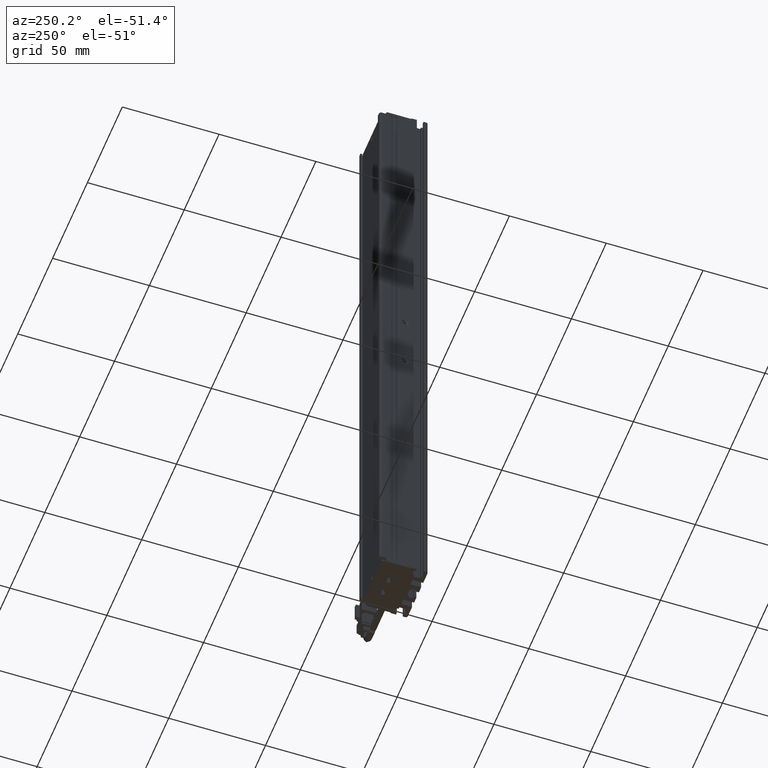
[diagram: clean part render]
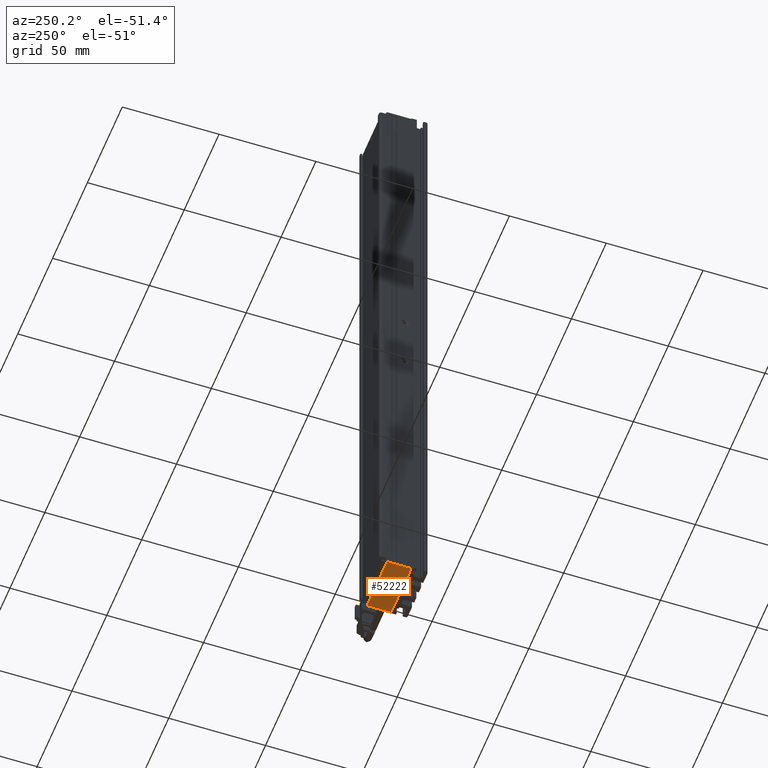
[diagram: same view with one face highlighted and labeled with its STEP entity id]
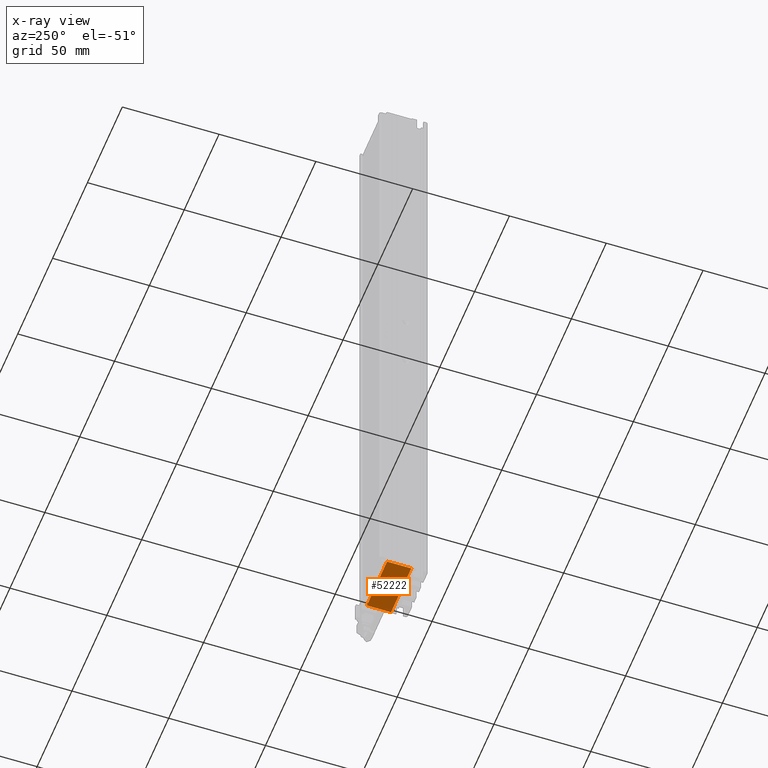
[diagram: x-ray of the same camera — body ghosted, the highlighted face saturated]
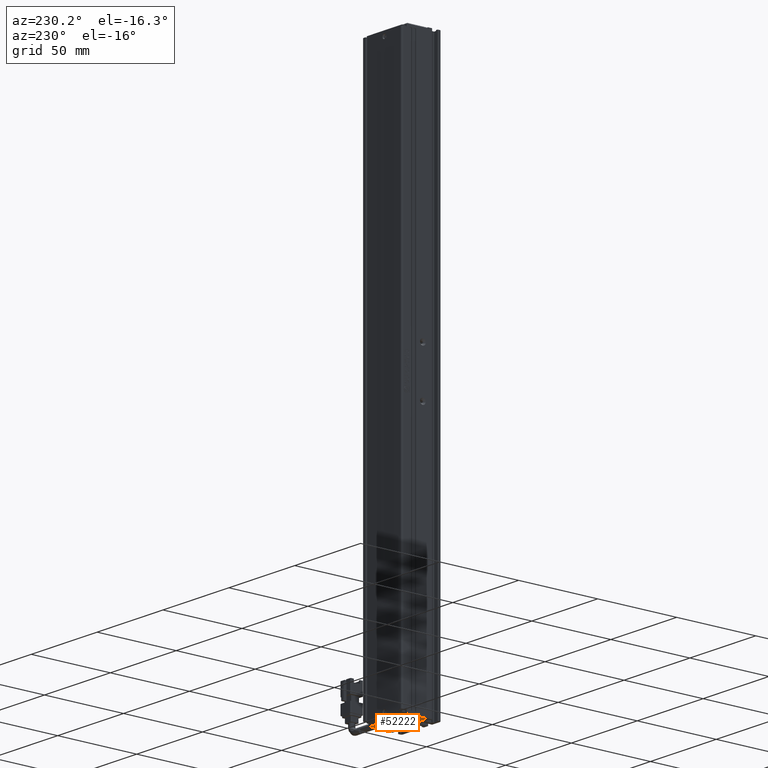
[diagram: same view with one face highlighted and labeled with its STEP entity id]
A machine part, auxiliary view. The second image highlights one B-rep face of the part: STEP entity #52222.
The next image is the same camera in x-ray: the body ghosted, the highlighted face saturated — about 0% of this face is hidden behind the body in this view.
A second angle (auxiliary view) of the same face is appended — the face is thin or edge-on in the first view.
In plain terms, the highlighted planar face has unit normal (0, 0, -1).
Its self-contained STEP definition (entity closure, byte-faithful):
#304 = DIRECTION ( 'NONE',  ( 0.0000000000000000000, 0.0000000000000000000, -1.000000000000000000 ) ) ;
#623 = CARTESIAN_POINT ( 'NONE',  ( 44.92537974683542500, 27.19594479660386500, -290.0000000000000000 ) ) ;
#628 = VERTEX_POINT ( 'NONE', #48000 ) ;
#2258 = DIRECTION ( 'NONE',  ( -0.0000000000000000000, -0.0000000000000000000, 1.000000000000000000 ) ) ;
#2481 = CARTESIAN_POINT ( 'NONE',  ( 35.22537974680740500, 27.19594479660386500, -289.9999999999809000 ) ) ;
#2942 = VERTEX_POINT ( 'NONE', #66561 ) ;
#3787 = EDGE_LOOP ( 'NONE', ( #63142, #16694 ) ) ;
#5142 = VECTOR ( 'NONE', #41904, 1000.000000000000000 ) ;
#5411 = CARTESIAN_POINT ( 'NONE',  ( 55.42537974683541800, 25.69594479660386500, -290.0000000000000000 ) ) ;
#5842 = DIRECTION ( 'NONE',  ( -1.000000000000000000, 0.0000000000000000000, 0.0000000000000000000 ) ) ;
#5920 = EDGE_CURVE ( 'NONE', #2942, #14157, #58280, .T. ) ;
#7963 = AXIS2_PLACEMENT_3D ( 'NONE', #33438, #2258, #38723 ) ;
#8623 = CIRCLE ( 'NONE', #7963, 1.700000000028012400 ) ;
#9211 = ORIENTED_EDGE ( 'NONE', *, *, #14286, .T. ) ;
#9587 = FACE_OUTER_BOUND ( 'NONE', #27612, .T. ) ;
#10458 = DIRECTION ( 'NONE',  ( -0.0000000000000000000, -1.000000000000000000, -0.0000000000000000000 ) ) ;
#12069 = EDGE_CURVE ( 'NONE', #43492, #12774, #52170, .T. ) ;
#12774 = VERTEX_POINT ( 'NONE', #24888 ) ;
#13977 = DIRECTION ( 'NONE',  ( -0.0000000000000000000, -0.0000000000000000000, 1.000000000000000000 ) ) ;
#14157 = VERTEX_POINT ( 'NONE', #28346 ) ;
#14286 = EDGE_CURVE ( 'NONE', #20226, #628, #21516, .T. ) ;
#15766 = ORIENTED_EDGE ( 'NONE', *, *, #12069, .T. ) ;
#16280 = AXIS2_PLACEMENT_3D ( 'NONE', #623, #37090, #5842 ) ;
#16694 = ORIENTED_EDGE ( 'NONE', *, *, #56267, .T. ) ;
#17359 = DIRECTION ( 'NONE',  ( 1.000000000000000000, -0.0000000000000000000, 0.0000000000000000000 ) ) ;
#19888 = EDGE_LOOP ( 'NONE', ( #45045, #9211 ) ) ;
#20226 = VERTEX_POINT ( 'NONE', #30289 ) ;
#20814 = EDGE_CURVE ( 'NONE', #41619, #33379, #48692, .T. ) ;
#21516 = CIRCLE ( 'NONE', #29371, 1.700000000008916600 ) ;
#24259 = CARTESIAN_POINT ( 'NONE',  ( 40.92537974683542500, 19.19594479660386500, -290.0000000000000000 ) ) ;
#24888 = CARTESIAN_POINT ( 'NONE',  ( 55.42537974683542500, 31.69594479660386800, -290.0000000000000000 ) ) ;
#25147 = FACE_BOUND ( 'NONE', #3787, .T. ) ;
#26041 = CARTESIAN_POINT ( 'NONE',  ( 26.42537974683542500, 25.69594479660386500, -290.0000000000000000 ) ) ;
#26375 = CARTESIAN_POINT ( 'NONE',  ( 36.92537974683541800, 27.19594479660386500, -289.9999999999809000 ) ) ;
#26621 = CARTESIAN_POINT ( 'NONE',  ( 26.42537974683542500, 31.69594479660386800, -290.0000000000000000 ) ) ;
#27612 = EDGE_LOOP ( 'NONE', ( #48255, #53817, #64640, #15766 ) ) ;
#28346 = CARTESIAN_POINT ( 'NONE',  ( 26.42537974683542500, 19.19594479660386500, -290.0000000000000000 ) ) ;
#29111 = EDGE_CURVE ( 'NONE', #628, #20226, #51629, .T. ) ;
#29371 = AXIS2_PLACEMENT_3D ( 'NONE', #45183, #13977, #50431 ) ;
#30289 = CARTESIAN_POINT ( 'NONE',  ( 46.62537974684434500, 27.19594479660386500, -290.0000000000000000 ) ) ;
#30604 = VECTOR ( 'NONE', #55647, 1000.000000000000000 ) ;
#31535 = CARTESIAN_POINT ( 'NONE',  ( 40.92537974683542500, 25.69594479660386500, -290.0000000000000000 ) ) ;
#31571 = DIRECTION ( 'NONE',  ( -1.000000000000000000, 0.0000000000000000000, 0.0000000000000000000 ) ) ;
#33379 = VERTEX_POINT ( 'NONE', #40503 ) ;
#33438 = CARTESIAN_POINT ( 'NONE',  ( 36.92537974683541800, 27.19594479660386500, -289.9999999999809000 ) ) ;
#36767 = DIRECTION ( 'NONE',  ( -1.000000000000000000, 0.0000000000000000000, -0.0000000000000000000 ) ) ;
#37090 = DIRECTION ( 'NONE',  ( -0.0000000000000000000, -0.0000000000000000000, 1.000000000000000000 ) ) ;
#38315 = VECTOR ( 'NONE', #17359, 1000.000000000000000 ) ;
#38517 = AXIS2_PLACEMENT_3D ( 'NONE', #26375, #62788, #31571 ) ;
#38723 = DIRECTION ( 'NONE',  ( -1.000000000000000000, 0.0000000000000000000, 0.0000000000000000000 ) ) ;
#39540 = AXIS2_PLACEMENT_3D ( 'NONE', #31535, #304, #36767 ) ;
#40503 = CARTESIAN_POINT ( 'NONE',  ( 38.62537974686343000, 27.19594479660386500, -289.9999999999809000 ) ) ;
#41619 = VERTEX_POINT ( 'NONE', #2481 ) ;
#41904 = DIRECTION ( 'NONE',  ( 0.0000000000000000000, 1.000000000000000000, 0.0000000000000000000 ) ) ;
#43492 = VERTEX_POINT ( 'NONE', #26621 ) ;
#45045 = ORIENTED_EDGE ( 'NONE', *, *, #29111, .T. ) ;
#45183 = CARTESIAN_POINT ( 'NONE',  ( 44.92537974683542500, 27.19594479660386500, -290.0000000000000000 ) ) ;
#46800 = PLANE ( 'NONE',  #39540 ) ;
#48000 = CARTESIAN_POINT ( 'NONE',  ( 43.22537974682651200, 27.19594479660386500, -290.0000000000000000 ) ) ;
#48255 = ORIENTED_EDGE ( 'NONE', *, *, #62169, .T. ) ;
#48692 = CIRCLE ( 'NONE', #38517, 1.700000000028012400 ) ;
#50431 = DIRECTION ( 'NONE',  ( -1.000000000000000000, 0.0000000000000000000, 0.0000000000000000000 ) ) ;
#51629 = CIRCLE ( 'NONE', #16280, 1.700000000008916600 ) ;
#52170 = LINE ( 'NONE', #53826, #38315 ) ;
#52222 = ADVANCED_FACE ( 'NONE', ( #9587, #25147, #65081 ), #46800, .T. ) ;
#53817 = ORIENTED_EDGE ( 'NONE', *, *, #5920, .T. ) ;
#53826 = CARTESIAN_POINT ( 'NONE',  ( 40.92537974683542500, 31.69594479660386500, -290.0000000000000000 ) ) ;
#55647 = DIRECTION ( 'NONE',  ( -1.000000000000000000, 0.0000000000000000000, -0.0000000000000000000 ) ) ;
#56267 = EDGE_CURVE ( 'NONE', #33379, #41619, #8623, .T. ) ;
#57714 = EDGE_CURVE ( 'NONE', #14157, #43492, #60616, .T. ) ;
#58280 = LINE ( 'NONE', #24259, #30604 ) ;
#60616 = LINE ( 'NONE', #26041, #5142 ) ;
#62169 = EDGE_CURVE ( 'NONE', #12774, #2942, #65808, .T. ) ;
#62788 = DIRECTION ( 'NONE',  ( -0.0000000000000000000, -0.0000000000000000000, 1.000000000000000000 ) ) ;
#63142 = ORIENTED_EDGE ( 'NONE', *, *, #20814, .T. ) ;
#64142 = VECTOR ( 'NONE', #10458, 1000.000000000000000 ) ;
#64640 = ORIENTED_EDGE ( 'NONE', *, *, #57714, .T. ) ;
#65081 = FACE_BOUND ( 'NONE', #19888, .T. ) ;
#65808 = LINE ( 'NONE', #5411, #64142 ) ;
#66561 = CARTESIAN_POINT ( 'NONE',  ( 55.42537974683541100, 19.19594479660386500, -290.0000000000000000 ) ) ;